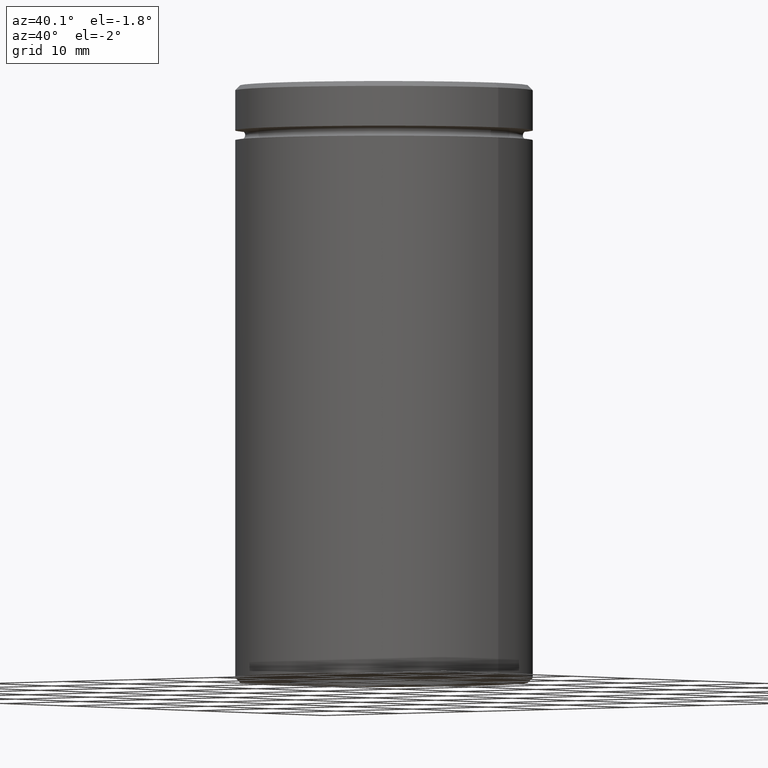
[diagram: clean part render]
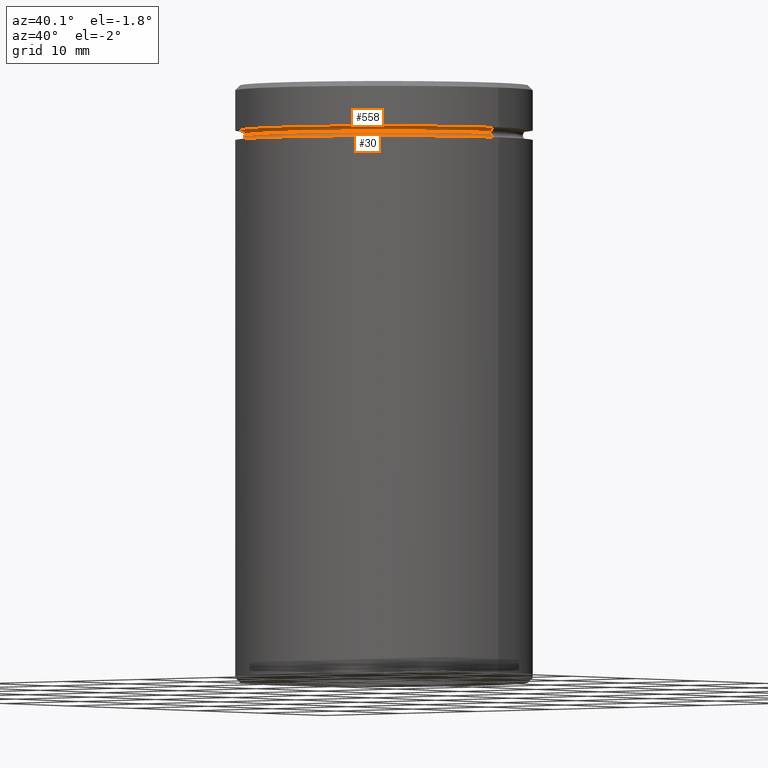
[diagram: same view with one multi-face feature highlighted, each face labeled with its STEP entity id]
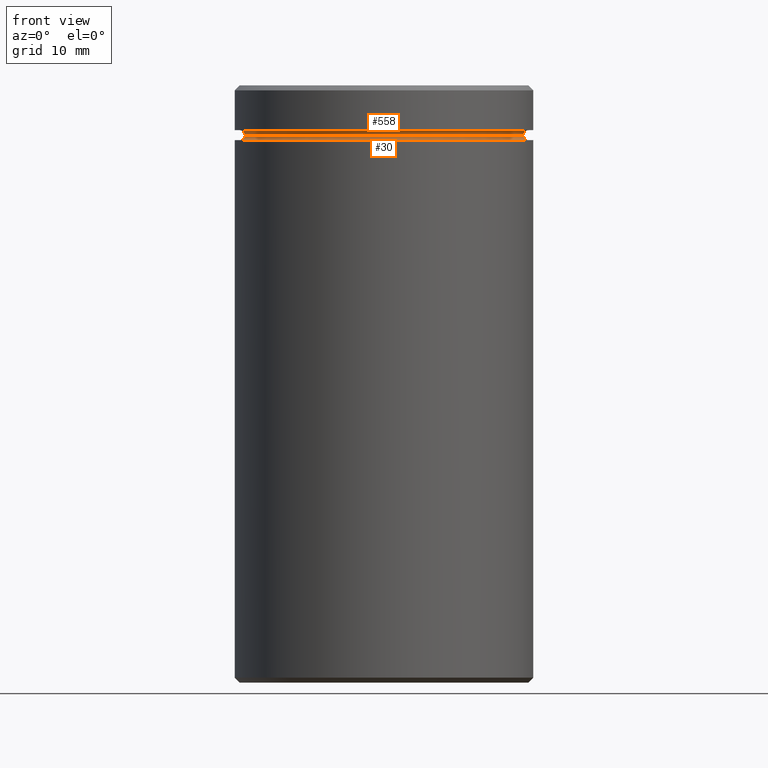
[diagram: same view with one multi-face feature highlighted, each face labeled with its STEP entity id]
A machine part, auxiliary view. The highlighted faces form ONE feature: a constant-radius fillet chain: 2 tangent blend faces with common blend radius 0.5 mm. The faces share edges in the B-rep.
A second angle (front view) of the same feature is appended — it is thin or edge-on in the first view.
Their STEP definitions:
[1] entity #30 (Torus):
#11 = DIRECTION ( 'NONE',  ( -1.000000000000000000, 1.224646799147349509E-16, 0.000000000000000000 ) ) ;
#17 = CARTESIAN_POINT ( 'NONE',  ( 0.000000000000000000, 0.000000000000000000, -5.500000000000000000 ) ) ;
#30 = ADVANCED_FACE ( 'NONE', ( #335 ), #375, .F. ) ;
#42 = AXIS2_PLACEMENT_3D ( 'NONE', #444, #50, #316 ) ;
#50 = DIRECTION ( 'NONE',  ( 0.000000000000000000, -1.000000000000000000, 0.000000000000000000 ) ) ;
#67 = CARTESIAN_POINT ( 'NONE',  ( -13.99999999999999822, 1.745121688784978228E-15, -4.999999999999999112 ) ) ;
#78 = EDGE_CURVE ( 'NONE', #198, #378, #217, .T. ) ;
#79 = CARTESIAN_POINT ( 'NONE',  ( 0.000000000000000000, 0.000000000000000000, -4.999999999999999112 ) ) ;
#84 = VERTEX_POINT ( 'NONE', #224 ) ;
#173 = AXIS2_PLACEMENT_3D ( 'NONE', #79, #512, #253 ) ;
#195 = ORIENTED_EDGE ( 'NONE', *, *, #343, .F. ) ;
#198 = VERTEX_POINT ( 'NONE', #67 ) ;
#217 = CIRCLE ( 'NONE', #281, 13.99999999999999822 ) ;
#224 = CARTESIAN_POINT ( 'NONE',  ( -14.49999999999999822, 1.775737858763662015E-15, -5.500000000000000000 ) ) ;
#235 = AXIS2_PLACEMENT_3D ( 'NONE', #17, #291, #466 ) ;
#253 = DIRECTION ( 'NONE',  ( 1.000000000000000000, 0.000000000000000000, 0.000000000000000000 ) ) ;
#262 = DIRECTION ( 'NONE',  ( -0.000000000000000000, -0.000000000000000000, 1.000000000000000000 ) ) ;
#269 = CIRCLE ( 'NONE', #42, 0.5000000000000004441 ) ;
#281 = AXIS2_PLACEMENT_3D ( 'NONE', #384, #262, #438 ) ;
#291 = DIRECTION ( 'NONE',  ( 0.000000000000000000, 0.000000000000000000, -1.000000000000000000 ) ) ;
#294 = AXIS2_PLACEMENT_3D ( 'NONE', #495, #346, #11 ) ;
#316 = DIRECTION ( 'NONE',  ( 0.000000000000000000, 0.000000000000000000, -1.000000000000000000 ) ) ;
#328 = ORIENTED_EDGE ( 'NONE', *, *, #443, .F. ) ;
#329 = EDGE_CURVE ( 'NONE', #198, #84, #356, .T. ) ;
#335 = FACE_OUTER_BOUND ( 'NONE', #549, .T. ) ;
#343 = EDGE_CURVE ( 'NONE', #378, #369, #269, .T. ) ;
#346 = DIRECTION ( 'NONE',  ( 1.224646799147353207E-16, 1.000000000000000000, 0.000000000000000000 ) ) ;
#350 = CARTESIAN_POINT ( 'NONE',  ( 13.99999999999999822, 0.000000000000000000, -4.999999999999999112 ) ) ;
#356 = CIRCLE ( 'NONE', #294, 0.5000000000000004441 ) ;
#369 = VERTEX_POINT ( 'NONE', #487 ) ;
#375 = TOROIDAL_SURFACE ( 'NONE', #173, 14.49999999999999822, 0.5000000000000000000 ) ;
#378 = VERTEX_POINT ( 'NONE', #350 ) ;
#384 = CARTESIAN_POINT ( 'NONE',  ( 0.000000000000000000, 0.000000000000000000, -4.999999999999999112 ) ) ;
#438 = DIRECTION ( 'NONE',  ( 1.000000000000000000, 0.000000000000000000, 0.000000000000000000 ) ) ;
#443 = EDGE_CURVE ( 'NONE', #369, #84, #566, .T. ) ;
#444 = CARTESIAN_POINT ( 'NONE',  ( 14.49999999999999822, 0.000000000000000000, -4.999999999999999112 ) ) ;
#466 = DIRECTION ( 'NONE',  ( 1.000000000000000000, 0.000000000000000000, 0.000000000000000000 ) ) ;
#487 = CARTESIAN_POINT ( 'NONE',  ( 14.49999999999999822, 0.000000000000000000, -5.500000000000000000 ) ) ;
#495 = CARTESIAN_POINT ( 'NONE',  ( -14.49999999999999822, 1.775737858763662015E-15, -4.999999999999999112 ) ) ;
#501 = ORIENTED_EDGE ( 'NONE', *, *, #78, .F. ) ;
#504 = ORIENTED_EDGE ( 'NONE', *, *, #329, .T. ) ;
#512 = DIRECTION ( 'NONE',  ( -0.000000000000000000, -0.000000000000000000, 1.000000000000000000 ) ) ;
#549 = EDGE_LOOP ( 'NONE', ( #501, #504, #328, #195 ) ) ;
#566 = CIRCLE ( 'NONE', #235, 14.49999999999999822 ) ;
[2] entity #558 (Torus):
#67 = CARTESIAN_POINT ( 'NONE',  ( -13.99999999999999822, 1.745121688784978228E-15, -4.999999999999999112 ) ) ;
#76 = TOROIDAL_SURFACE ( 'NONE', #383, 14.49999999999999822, 0.5000000000000000000 ) ;
#78 = EDGE_CURVE ( 'NONE', #198, #378, #217, .T. ) ;
#81 = FACE_OUTER_BOUND ( 'NONE', #474, .T. ) ;
#83 = CARTESIAN_POINT ( 'NONE',  ( -14.49999999999999822, 0.000000000000000000, -5.000000000000000888 ) ) ;
#93 = CARTESIAN_POINT ( 'NONE',  ( 0.000000000000000000, 0.000000000000000000, -5.000000000000000888 ) ) ;
#141 = DIRECTION ( 'NONE',  ( -1.224646799147353207E-16, 1.000000000000000000, 0.000000000000000000 ) ) ;
#142 = DIRECTION ( 'NONE',  ( -0.000000000000000000, -0.000000000000000000, 1.000000000000000000 ) ) ;
#170 = ORIENTED_EDGE ( 'NONE', *, *, #494, .F. ) ;
#176 = CARTESIAN_POINT ( 'NONE',  ( 0.000000000000000000, 0.000000000000000000, -4.500000000000000888 ) ) ;
#198 = VERTEX_POINT ( 'NONE', #67 ) ;
#214 = DIRECTION ( 'NONE',  ( -0.000000000000000000, -1.000000000000000000, -0.000000000000000000 ) ) ;
#217 = CIRCLE ( 'NONE', #281, 13.99999999999999822 ) ;
#232 = ORIENTED_EDGE ( 'NONE', *, *, #482, .T. ) ;
#262 = DIRECTION ( 'NONE',  ( -0.000000000000000000, -0.000000000000000000, 1.000000000000000000 ) ) ;
#266 = DIRECTION ( 'NONE',  ( -1.000000000000000000, 0.000000000000000000, 0.000000000000000000 ) ) ;
#281 = AXIS2_PLACEMENT_3D ( 'NONE', #384, #262, #438 ) ;
#285 = VERTEX_POINT ( 'NONE', #419 ) ;
#288 = ORIENTED_EDGE ( 'NONE', *, *, #296, .F. ) ;
#296 = EDGE_CURVE ( 'NONE', #198, #299, #320, .T. ) ;
#299 = VERTEX_POINT ( 'NONE', #336 ) ;
#308 = DIRECTION ( 'NONE',  ( -1.000000000000000000, 0.000000000000000000, 0.000000000000000000 ) ) ;
#320 = CIRCLE ( 'NONE', #480, 0.5000000000000004441 ) ;
#336 = CARTESIAN_POINT ( 'NONE',  ( -14.49999999999999822, 0.000000000000000000, -4.500000000000000888 ) ) ;
#350 = CARTESIAN_POINT ( 'NONE',  ( 13.99999999999999822, 0.000000000000000000, -4.999999999999999112 ) ) ;
#378 = VERTEX_POINT ( 'NONE', #350 ) ;
#383 = AXIS2_PLACEMENT_3D ( 'NONE', #93, #557, #308 ) ;
#384 = CARTESIAN_POINT ( 'NONE',  ( 0.000000000000000000, 0.000000000000000000, -4.999999999999999112 ) ) ;
#413 = CIRCLE ( 'NONE', #538, 14.49999999999999822 ) ;
#419 = CARTESIAN_POINT ( 'NONE',  ( 14.49999999999999822, 1.775737858763662015E-15, -4.500000000000000888 ) ) ;
#433 = CIRCLE ( 'NONE', #568, 0.5000000000000004441 ) ;
#438 = DIRECTION ( 'NONE',  ( 1.000000000000000000, 0.000000000000000000, 0.000000000000000000 ) ) ;
#470 = ORIENTED_EDGE ( 'NONE', *, *, #78, .T. ) ;
#474 = EDGE_LOOP ( 'NONE', ( #470, #232, #170, #288 ) ) ;
#480 = AXIS2_PLACEMENT_3D ( 'NONE', #83, #214, #561 ) ;
#482 = EDGE_CURVE ( 'NONE', #378, #285, #433, .T. ) ;
#491 = CARTESIAN_POINT ( 'NONE',  ( 14.49999999999999822, 1.775737858763662015E-15, -5.000000000000000888 ) ) ;
#494 = EDGE_CURVE ( 'NONE', #299, #285, #413, .T. ) ;
#533 = DIRECTION ( 'NONE',  ( -1.000000000000000000, -1.224646799147353454E-16, 0.000000000000000000 ) ) ;
#538 = AXIS2_PLACEMENT_3D ( 'NONE', #176, #142, #266 ) ;
#557 = DIRECTION ( 'NONE',  ( 0.000000000000000000, 0.000000000000000000, -1.000000000000000000 ) ) ;
#558 = ADVANCED_FACE ( 'NONE', ( #81 ), #76, .F. ) ;
#561 = DIRECTION ( 'NONE',  ( 0.000000000000000000, 0.000000000000000000, -1.000000000000000000 ) ) ;
#568 = AXIS2_PLACEMENT_3D ( 'NONE', #491, #141, #533 ) ;